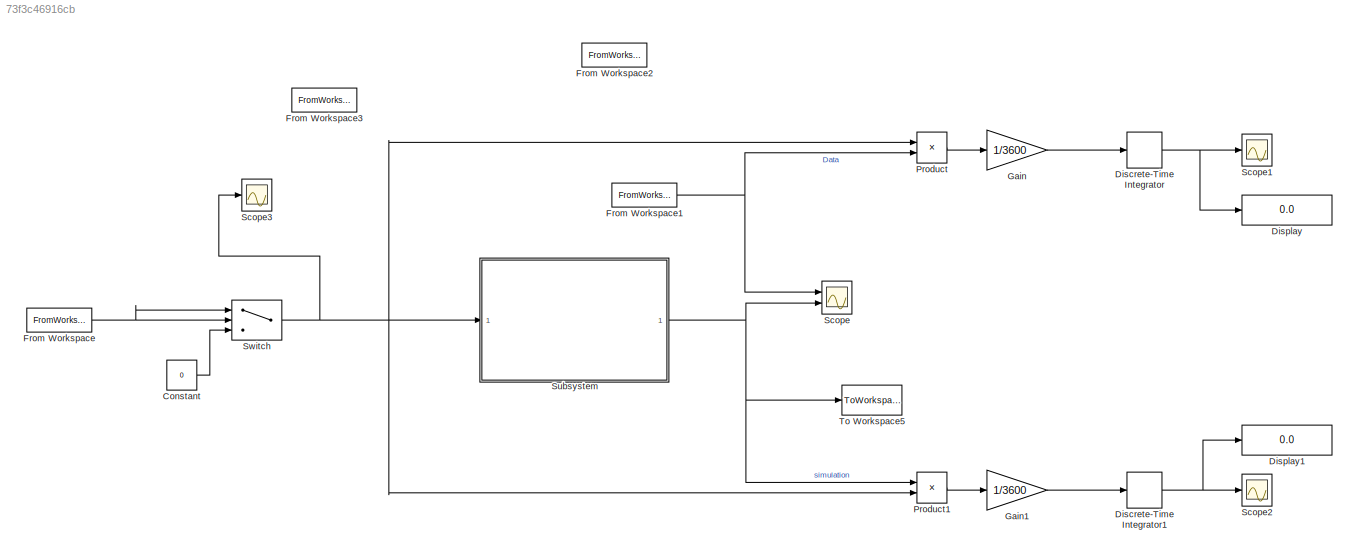
MODEL slx_73f3c46916cb
KIND model
CONFIG AbsTol = auto
CONFIG EnableMultiTasking = off
CONFIG FixedStep = auto
CONFIG MaxStep = auto
CONFIG MinStep = auto
CONFIG RelTol = 1e-3
CONFIG SampleTimeConstraint = Unconstrained
CONFIG Solver = VariableStepAuto
CONFIG SolverName = VariableStepAuto
CONFIG StartTime = 0.0
CONFIG StopTime = 2417.4
BLOCK [Constant] Constant
  Value = 0
BLOCK [DiscreteIntegrator] Discrete-Time Integrator
  ICPrevOutput = DiscIntNeverNeededParam
  ICPrevScaledInput = DiscIntNeverNeededParam
  InitialConditionSetting = Auto
  Ports = [1, 1]
  SampleTime = -1
BLOCK [DiscreteIntegrator] Discrete-Time Integrator1
  ICPrevOutput = DiscIntNeverNeededParam
  ICPrevScaledInput = DiscIntNeverNeededParam
  InitialConditionSetting = Auto
  Ports = [1, 1]
  SampleTime = -1
BLOCK [Display] Display
  Decimation = 1
  Ports = [1]
BLOCK [Display] Display1
  Decimation = 1
  Ports = [1]
BLOCK [FromWorkspace] From Workspace
  SampleTime = 0.001
  VariableName = currentdata
  ZeroCross = on
BLOCK [FromWorkspace] From Workspace1
  SampleTime = 0.001
  VariableName = voltagedata
  ZeroCross = on
BLOCK [FromWorkspace] From Workspace2
  Commented = on
  Interpolate = off
  OutputAfterFinalValue = Cyclic repetition
  SampleTime = 0.001
  VariableName = Vbat
BLOCK [FromWorkspace] From Workspace3
  Commented = on
  Interpolate = off
  OutputAfterFinalValue = Cyclic repetition
  SampleTime = 0.001
  VariableName = Ibat
BLOCK [Gain] Gain
  Gain = 1/3600
  OutDataTypeStr = Inherit: Inherit via internal rule
  ParamDataTypeStr = Inherit: Inherit via internal rule
  SaturateOnIntegerOverflow = off
BLOCK [Gain] Gain1
  Gain = 1/3600
  OutDataTypeStr = Inherit: Inherit via internal rule
  ParamDataTypeStr = Inherit: Inherit via internal rule
  SaturateOnIntegerOverflow = off
BLOCK [Product] Product
  InputSameDT = off
  OutDataTypeStr = Inherit: Inherit via internal rule
  Ports = [2, 1]
  RndMeth = Floor
  SaturateOnIntegerOverflow = off
BLOCK [Product] Product1
  InputSameDT = off
  OutDataTypeStr = Inherit: Inherit via internal rule
  Ports = [2, 1]
  RndMeth = Floor
  SaturateOnIntegerOverflow = off
BLOCK [Scope] Scope
  Floating = off
  NumInputPorts = 2
  Ports = [2]
  ScopeSpecificationString = Simulink.scopes.TimeScopeBlockCfg('CurrentConfiguration', extmgr.ConfigurationSet(extmgr.Configuration('Core','General UI',true),extmgr.Configuration('Core','Source UI',true),extmgr.Configuration('Sources','WiredSimulink',true),extmgr.Configuration('Visuals','Time Domain',true,'SerializedDisplays',{struct('MinYLimReal','3.48942','MaxYLimReal','4.27675','YLabelReal','','MinYLimMag','3.48942','MaxYL...<+1406ch>
BLOCK [Scope] Scope1
  Floating = off
  NumInputPorts = 1
  Ports = [1]
  ScopeSpecificationString = Simulink.scopes.TimeScopeBlockCfg('CurrentConfiguration', extmgr.ConfigurationSet(extmgr.Configuration('Core','General UI',true),extmgr.Configuration('Core','Source UI',true),extmgr.Configuration('Sources','WiredSimulink',true,'DataLoggingVariableName','ScopeData1'),extmgr.Configuration('Visuals','Time Domain',true,'SerializedDisplays',{struct('MinYLimReal','26.58272','MaxYLimReal','26.76913','YLa...<+1462ch>
BLOCK [Scope] Scope2
  Floating = off
  NumInputPorts = 1
  Ports = [1]
  ScopeSpecificationString = Simulink.scopes.TimeScopeBlockCfg('CurrentConfiguration', extmgr.ConfigurationSet(extmgr.Configuration('Core','General UI',true),extmgr.Configuration('Core','Source UI',true),extmgr.Configuration('Sources','WiredSimulink',true,'DataLoggingVariableName','ScopeData1'),extmgr.Configuration('Visuals','Time Domain',true,'SerializedDisplays',{struct('MinYLimReal','-3.34834','MaxYLimReal','30.13504','YLa...<+1461ch>
BLOCK [Scope] Scope3
  Floating = off
  NumInputPorts = 1
  Ports = [1]
  ScopeSpecificationString = Simulink.scopes.TimeScopeBlockCfg('CurrentConfiguration', extmgr.ConfigurationSet(extmgr.Configuration('Core','General UI',true),extmgr.Configuration('Core','Source UI',true),extmgr.Configuration('Sources','WiredSimulink',true,'DataLoggingVariableName','ScopeData1'),extmgr.Configuration('Visuals','Time Domain',true,'SerializedDisplays',{struct('MinYLimReal','-5.76727','MaxYLimReal','51.90545','YLa...<+1423ch>
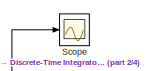
[diagram: Subsystem - part 1/4, top left region]
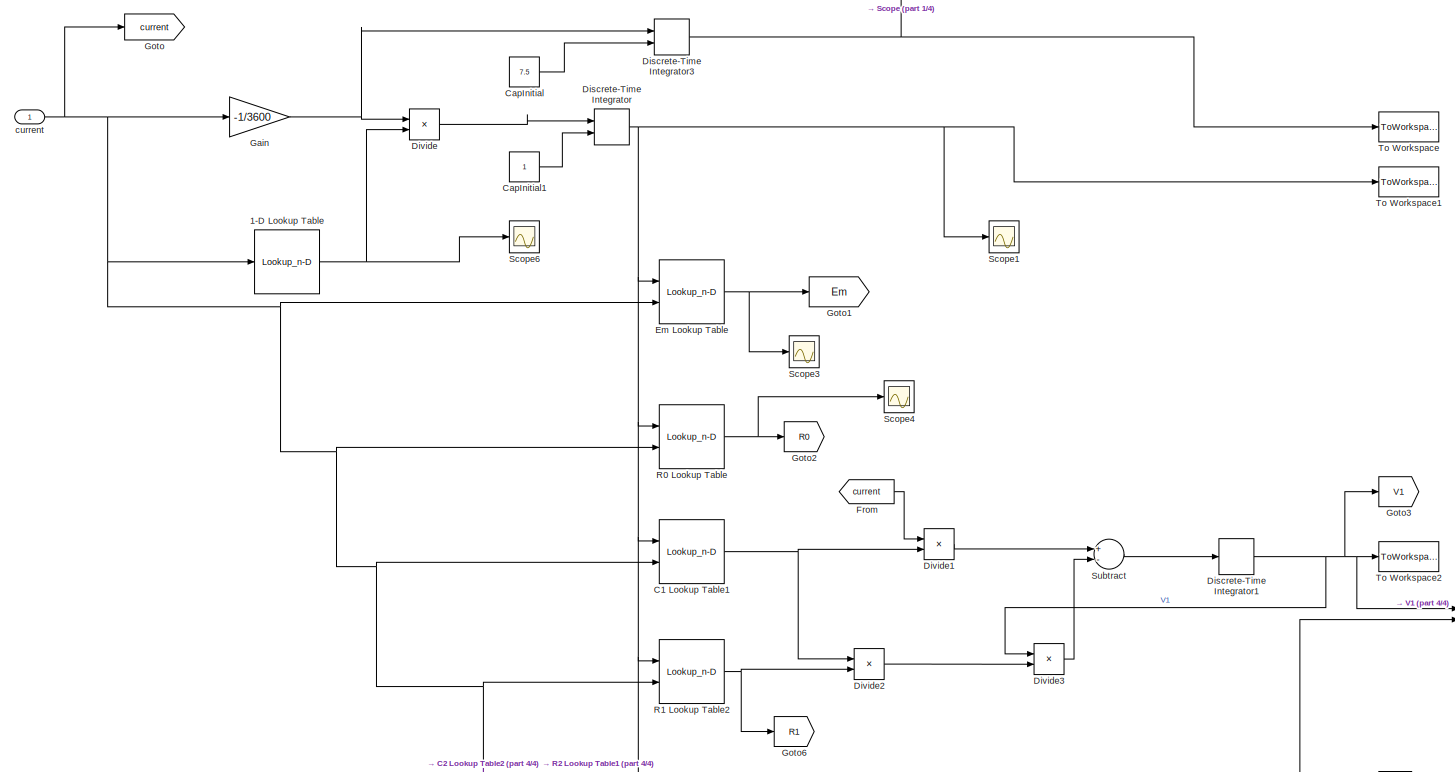
[diagram: Subsystem - part 2/4, middle left region]
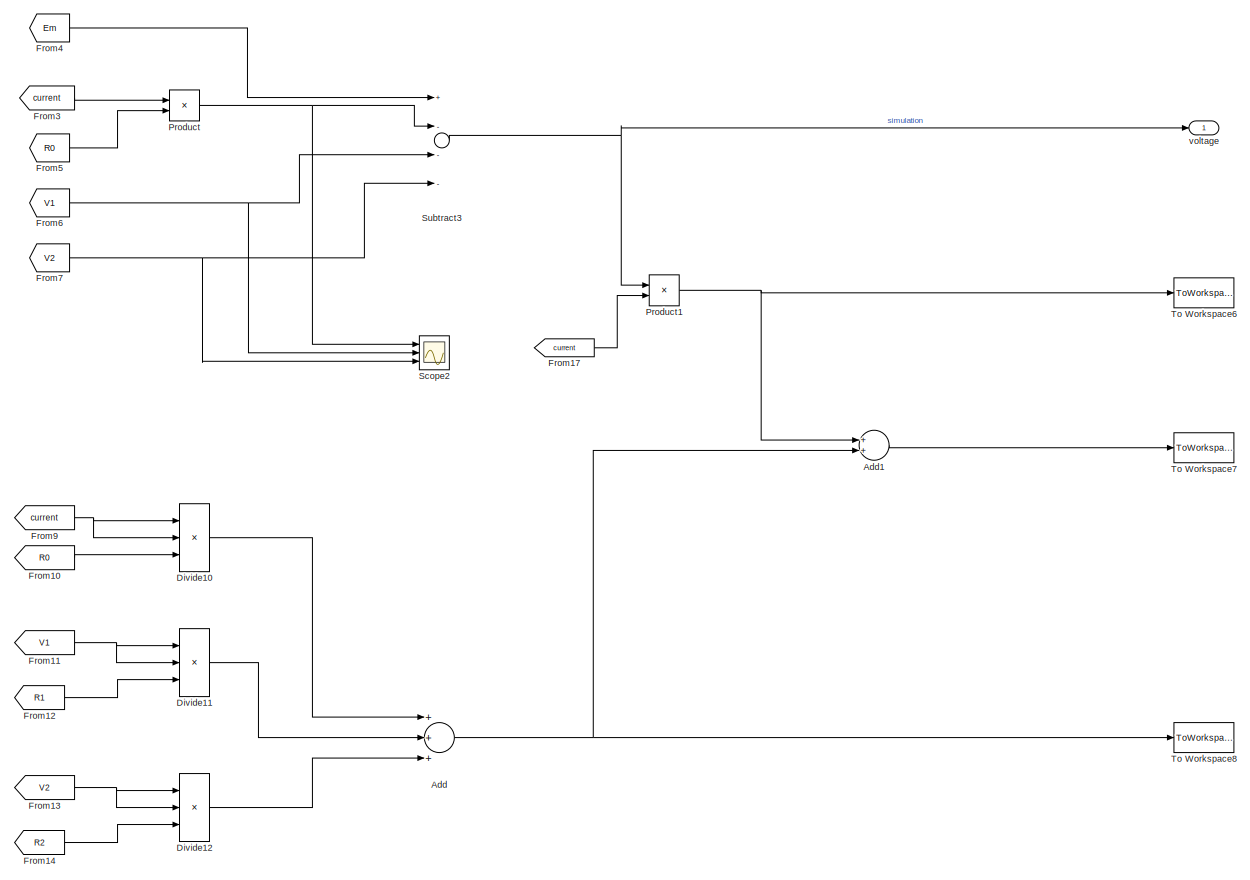
[diagram: Subsystem - part 3/4, middle right region]
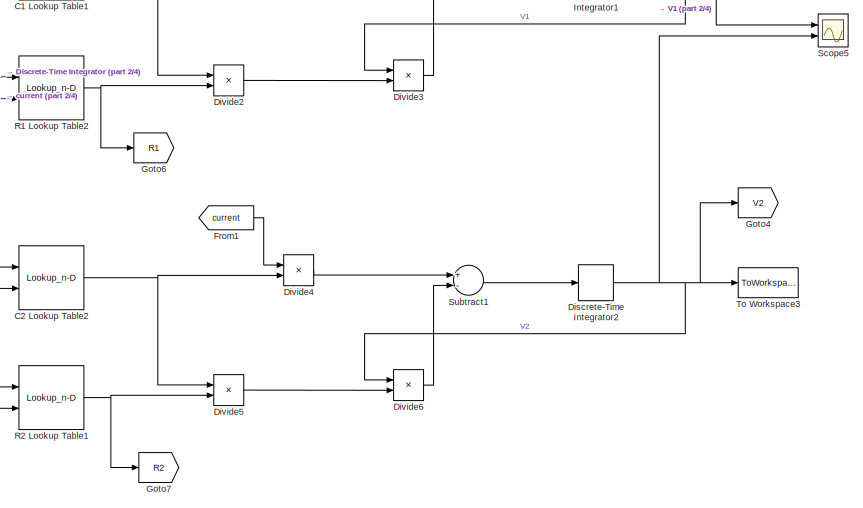
[diagram: Subsystem - part 4/4, bottom center region]
BLOCK [SubSystem] Subsystem
  Ports = [1, 1]
  RequestExecContextInheritance = off
BLOCK [Lookup_n-D] Subsystem/1-D Lookup Table
  BreakpointsForDimension1 = Idis
  InternalRulePriority = Speed
  NumberOfTableDimensions = 1
  Ports = [1, 1]
  RndMeth = Simplest
  Table = Ah
BLOCK [Sum] Subsystem/Add
  InputSameDT = off
  Inputs = +++
  OutDataTypeStr = Inherit: Inherit via internal rule
  Ports = [3, 1]
  SaturateOnIntegerOverflow = off
BLOCK [Sum] Subsystem/Add1
  InputSameDT = off
  OutDataTypeStr = Inherit: Inherit via internal rule
  Ports = [2, 1]
  SaturateOnIntegerOverflow = off
BLOCK [Lookup_n-D] Subsystem/C1 Lookup Table1
  BreakpointsForDimension1 = SOCnew
  BreakpointsForDimension2 = Idis
  InternalRulePriority = Speed
  Ports = [2, 1]
  RndMeth = Simplest
  Table = C1new
BLOCK [Lookup_n-D] Subsystem/C2 Lookup Table2
  BreakpointsForDimension1 = SOCnew
  BreakpointsForDimension2 = Idis
  InternalRulePriority = Speed
  Ports = [2, 1]
  RndMeth = Simplest
  Table = C2new
BLOCK [Constant] Subsystem/CapInitial
  SampleTime = 0.001
  Value = 7.5
BLOCK [Constant] Subsystem/CapInitial1
  SampleTime = 0.001
BLOCK [DiscreteIntegrator] Subsystem/Discrete-Time Integrator
  ICPrevOutput = DiscIntNeverNeededParam
  ICPrevScaledInput = DiscIntNeverNeededParam
  InitialConditionSetting = Auto
  InitialConditionSource = external
  Ports = [2, 1]
  SampleTime = -1
BLOCK [DiscreteIntegrator] Subsystem/Discrete-Time Integrator1
  ICPrevOutput = DiscIntNeverNeededParam
  ICPrevScaledInput = DiscIntNeverNeededParam
  InitialConditionSetting = Auto
  Ports = [1, 1]
  SampleTime = -1
BLOCK [DiscreteIntegrator] Subsystem/Discrete-Time Integrator2
  ICPrevOutput = DiscIntNeverNeededParam
  ICPrevScaledInput = DiscIntNeverNeededParam
  InitialConditionSetting = Auto
  Ports = [1, 1]
  SampleTime = -1
BLOCK [DiscreteIntegrator] Subsystem/Discrete-Time Integrator3
  ICPrevOutput = DiscIntNeverNeededParam
  ICPrevScaledInput = DiscIntNeverNeededParam
  InitialConditionSetting = Auto
  InitialConditionSource = external
  Ports = [2, 1]
  SampleTime = -1
BLOCK [Product] Subsystem/Divide
  InputSameDT = off
  Inputs = */
  OutDataTypeStr = Inherit: Inherit via internal rule
  Ports = [2, 1]
  RndMeth = Floor
  SaturateOnIntegerOverflow = off
BLOCK [Product] Subsystem/Divide1
  InputSameDT = off
  Inputs = */
  OutDataTypeStr = Inherit: Inherit via internal rule
  Ports = [2, 1]
  RndMeth = Floor
  SaturateOnIntegerOverflow = off
BLOCK [Product] Subsystem/Divide10
  InputSameDT = off
  Inputs = ***
  OutDataTypeStr = Inherit: Inherit via internal rule
  Ports = [3, 1]
  RndMeth = Floor
  SaturateOnIntegerOverflow = off
BLOCK [Product] Subsystem/Divide11
  InputSameDT = off
  Inputs = **/
  OutDataTypeStr = Inherit: Inherit via internal rule
  Ports = [3, 1]
  RndMeth = Floor
  SaturateOnIntegerOverflow = off
BLOCK [Product] Subsystem/Divide12
  InputSameDT = off
  Inputs = **/
  OutDataTypeStr = Inherit: Inherit via internal rule
  Ports = [3, 1]
  RndMeth = Floor
  SaturateOnIntegerOverflow = off
BLOCK [Product] Subsystem/Divide2
  InputSameDT = off
  Inputs = **
  OutDataTypeStr = Inherit: Inherit via internal rule
  Ports = [2, 1]
  RndMeth = Floor
  SaturateOnIntegerOverflow = off
BLOCK [Product] Subsystem/Divide3
  InputSameDT = off
  Inputs = */
  OutDataTypeStr = Inherit: Inherit via internal rule
  Ports = [2, 1]
  RndMeth = Floor
  SaturateOnIntegerOverflow = off
BLOCK [Product] Subsystem/Divide4
  InputSameDT = off
  Inputs = */
  OutDataTypeStr = Inherit: Inherit via internal rule
  Ports = [2, 1]
  RndMeth = Floor
  SaturateOnIntegerOverflow = off
BLOCK [Product] Subsystem/Divide5
  InputSameDT = off
  Inputs = **
  OutDataTypeStr = Inherit: Inherit via internal rule
  Ports = [2, 1]
  RndMeth = Floor
  SaturateOnIntegerOverflow = off
BLOCK [Product] Subsystem/Divide6
  InputSameDT = off
  Inputs = */
  OutDataTypeStr = Inherit: Inherit via internal rule
  Ports = [2, 1]
  RndMeth = Floor
  SaturateOnIntegerOverflow = off
BLOCK [Lookup_n-D] Subsystem/Em Lookup Table
  BreakpointsForDimension1 = SOCnew
  BreakpointsForDimension2 = Idis
  InternalRulePriority = Speed
  Ports = [2, 1]
  RndMeth = Simplest
  Table = Emnew
BLOCK [From] Subsystem/From
  GotoTag = current
BLOCK [From] Subsystem/From1
  GotoTag = current
BLOCK [From] Subsystem/From10
  GotoTag = R0
BLOCK [From] Subsystem/From11
  GotoTag = V1
BLOCK [From] Subsystem/From12
  GotoTag = R1
BLOCK [From] Subsystem/From13
  GotoTag = V2
BLOCK [From] Subsystem/From14
  GotoTag = R2
BLOCK [From] Subsystem/From17
  GotoTag = current
BLOCK [From] Subsystem/From3
  GotoTag = current
BLOCK [From] Subsystem/From4
  GotoTag = Em
BLOCK [From] Subsystem/From5
  GotoTag = R0
BLOCK [From] Subsystem/From6
  GotoTag = V1
BLOCK [From] Subsystem/From7
  GotoTag = V2
BLOCK [From] Subsystem/From9
  GotoTag = current
BLOCK [Gain] Subsystem/Gain
  Gain = -1/3600
  OutDataTypeStr = Inherit: Inherit via internal rule
  ParamDataTypeStr = Inherit: Inherit via internal rule
  SaturateOnIntegerOverflow = off
BLOCK [Goto] Subsystem/Goto
  GotoTag = current
BLOCK [Goto] Subsystem/Goto1
  GotoTag = Em
BLOCK [Goto] Subsystem/Goto2
  GotoTag = R0
BLOCK [Goto] Subsystem/Goto3
  GotoTag = V1
BLOCK [Goto] Subsystem/Goto4
  GotoTag = V2
BLOCK [Goto] Subsystem/Goto6
  GotoTag = R1
BLOCK [Goto] Subsystem/Goto7
  GotoTag = R2
BLOCK [Product] Subsystem/Product
  InputSameDT = off
  OutDataTypeStr = Inherit: Inherit via internal rule
  Ports = [2, 1]
  RndMeth = Floor
  SaturateOnIntegerOverflow = off
BLOCK [Product] Subsystem/Product1
  InputSameDT = off
  OutDataTypeStr = Inherit: Inherit via internal rule
  Ports = [2, 1]
  RndMeth = Floor
  SaturateOnIntegerOverflow = off
BLOCK [Lookup_n-D] Subsystem/R0 Lookup Table
  BreakpointsForDimension1 = SOCnew
  BreakpointsForDimension2 = Idis
  InternalRulePriority = Speed
  Ports = [2, 1]
  RndMeth = Simplest
  Table = R0new
BLOCK [Lookup_n-D] Subsystem/R1 Lookup Table2
  BreakpointsForDimension1 = SOCnew
  BreakpointsForDimension2 = Idis
  InternalRulePriority = Speed
  Ports = [2, 1]
  RndMeth = Simplest
  Table = R1new
BLOCK [Lookup_n-D] Subsystem/R2 Lookup Table1
  BreakpointsForDimension1 = SOCnew
  BreakpointsForDimension2 = Idis
  InternalRulePriority = Speed
  Ports = [2, 1]
  RndMeth = Simplest
  Table = R2new
BLOCK [Scope] Subsystem/Scope
  Floating = off
  NumInputPorts = 1
  Ports = [1]
  ScopeSpecificationString = Simulink.scopes.TimeScopeBlockCfg('CurrentConfiguration', extmgr.ConfigurationSet(extmgr.Configuration('Core','General UI',true),extmgr.Configuration('Core','Source UI',true),extmgr.Configuration('Sources','WiredSimulink',true,'DataLoggingVariableName','ScopeData1'),extmgr.Configuration('Visuals','Time Domain',true,'SerializedDisplays',{struct('MinYLimReal','1.36527','MaxYLimReal','8.18164','YLabe...<+1382ch>
BLOCK [Scope] Subsystem/Scope1
  Floating = off
  NumInputPorts = 1
  Ports = [1]
  ScopeSpecificationString = Simulink.scopes.TimeScopeBlockCfg('CurrentConfiguration', extmgr.ConfigurationSet(extmgr.Configuration('Core','General UI',true),extmgr.Configuration('Core','Source UI',true),extmgr.Configuration('Sources','WiredSimulink',true,'DataLoggingVariableName','ScopeData2'),extmgr.Configuration('Visuals','Time Domain',true,'SerializedDisplays',{struct('MinYLimReal','0.71376','MaxYLimReal','0.97555','YLabe...<+1454ch>
BLOCK [Scope] Subsystem/Scope2
  Floating = off
  NumInputPorts = 3
  Ports = [3]
  ScopeSpecificationString = Simulink.scopes.TimeScopeBlockCfg('CurrentConfiguration', extmgr.ConfigurationSet(extmgr.Configuration('Core','General UI',true),extmgr.Configuration('Core','Source UI',true),extmgr.Configuration('Sources','WiredSimulink',true,'DataLoggingVariableName','ScopeData1'),extmgr.Configuration('Visuals','Time Domain',true,'SerializedDisplays',{struct('MinYLimReal','-0.10334','MaxYLimReal','0.10587','YLab...<+1519ch>
BLOCK [Scope] Subsystem/Scope3
  Floating = off
  NumInputPorts = 1
  Ports = [1]
  ScopeSpecificationString = Simulink.scopes.TimeScopeBlockCfg('CurrentConfiguration', extmgr.ConfigurationSet(extmgr.Configuration('Core','General UI',true),extmgr.Configuration('Core','Source UI',true),extmgr.Configuration('Sources','WiredSimulink',true,'DataLoggingVariableName','ScopeData2'),extmgr.Configuration('Visuals','Time Domain',true,'SerializedDisplays',{struct('MinYLimReal','3.69316','MaxYLimReal','4.27058','YLabe...<+1445ch>
BLOCK [Scope] Subsystem/Scope4
  Floating = off
  NumInputPorts = 1
  Ports = [1]
  ScopeSpecificationString = Simulink.scopes.TimeScopeBlockCfg('CurrentConfiguration', extmgr.ConfigurationSet(extmgr.Configuration('Core','General UI',true),extmgr.Configuration('Core','Source UI',true),extmgr.Configuration('Sources','WiredSimulink',true,'DataLoggingVariableName','ScopeData3'),extmgr.Configuration('Visuals','Time Domain',true,'SerializedDisplays',{struct('MinYLimReal','-0.0085','MaxYLimReal','0.01624','YLabe...<+1445ch>
BLOCK [Scope] Subsystem/Scope5
  Floating = off
  NumInputPorts = 2
  Ports = [2]
  ScopeSpecificationString = Simulink.scopes.TimeScopeBlockCfg('CurrentConfiguration', extmgr.ConfigurationSet(extmgr.Configuration('Core','General UI',true),extmgr.Configuration('Core','Source UI',true),extmgr.Configuration('Sources','WiredSimulink',true,'DataLoggingVariableName','ScopeData4'),extmgr.Configuration('Visuals','Time Domain',true,'SerializedDisplays',{struct('MinYLimReal','-93857058662643167605491509750708737765...<+1779ch>
BLOCK [Scope] Subsystem/Scope6
  Floating = off
  NumInputPorts = 1
  Ports = [1]
  ScopeSpecificationString = Simulink.scopes.TimeScopeBlockCfg('CurrentConfiguration', extmgr.ConfigurationSet(extmgr.Configuration('Core','General UI',true),extmgr.Configuration('Core','Source UI',true),extmgr.Configuration('Sources','WiredSimulink',true,'DataLoggingVariableName','ScopeData5'),extmgr.Configuration('Visuals','Time Domain',true,'SerializedDisplays',{struct('MinYLimReal','7.18587','MaxYLimReal','8.20157','YLabe...<+1446ch>
BLOCK [Sum] Subsystem/Subtract
  InputSameDT = off
  Inputs = +-
  OutDataTypeStr = Inherit: Inherit via internal rule
  Ports = [2, 1]
  SaturateOnIntegerOverflow = off
BLOCK [Sum] Subsystem/Subtract1
  InputSameDT = off
  Inputs = +-
  OutDataTypeStr = Inherit: Inherit via internal rule
  Ports = [2, 1]
  SaturateOnIntegerOverflow = off
BLOCK [Sum] Subsystem/Subtract3
  InputSameDT = off
  Inputs = +---
  OutDataTypeStr = Inherit: Inherit via internal rule
  Ports = [4, 1]
  SaturateOnIntegerOverflow = off
BLOCK [ToWorkspace] Subsystem/To Workspace
  FixptAsFi = on
  MaxDataPoints = inf
  Ports = [1]
  SampleTime = -1
  VariableName = Ah
BLOCK [ToWorkspace] Subsystem/To Workspace1
  FixptAsFi = on
  MaxDataPoints = inf
  Ports = [1]
  SampleTime = -1
  VariableName = SOC
BLOCK [ToWorkspace] Subsystem/To Workspace2
  FixptAsFi = on
  MaxDataPoints = inf
  Ports = [1]
  SampleTime = -1
  VariableName = V1
BLOCK [ToWorkspace] Subsystem/To Workspace3
  FixptAsFi = on
  MaxDataPoints = inf
  Ports = [1]
  SampleTime = -1
  VariableName = V2
BLOCK [ToWorkspace] Subsystem/To Workspace6
  FixptAsFi = on
  MaxDataPoints = inf
  Ports = [1]
  SampleTime = -1
  VariableName = PwrLoad
BLOCK [ToWorkspace] Subsystem/To Workspace7
  FixptAsFi = on
  MaxDataPoints = inf
  Ports = [1]
  SampleTime = -1
  VariableName = PwrStored
BLOCK [ToWorkspace] Subsystem/To Workspace8
  FixptAsFi = on
  MaxDataPoints = inf
  Ports = [1]
  SampleTime = -1
  VariableName = Pwrloss
BLOCK [Inport] Subsystem/current
  IconDisplay = Port number
BLOCK [Outport] Subsystem/voltage
  IconDisplay = Port number
BLOCK [Switch] Switch
  Criteria = u2 > Threshold
  InputSameDT = off
  SaturateOnIntegerOverflow = off
  Threshold = 0.5
BLOCK [ToWorkspace] To Workspace5
  FixptAsFi = on
  MaxDataPoints = inf
  Ports = [1]
  SampleTime = -1
  VariableName = BattVolt
LINE Constant:1 -> Switch:3
NET Discrete-Time Integrator1:1 -> Display1:1, Scope2:1
NET Discrete-Time Integrator:1 -> Display:1, Scope1:1
NET From Workspace1:1 -> Product:2, Scope:1
NET From Workspace:1 -> Switch:1, Switch:2
LINE Gain1:1 -> Discrete-Time Integrator1:1
LINE Gain:1 -> Discrete-Time Integrator:1
LINE Product1:1 -> Gain1:1
LINE Product:1 -> Gain:1
NET Subsystem/1-D Lookup Table:1 -> Subsystem/Divide:2, Subsystem/Scope6:1
LINE Subsystem/Add1:1 -> Subsystem/To Workspace7:1
NET Subsystem/Add:1 -> Subsystem/Add1:2, Subsystem/To Workspace8:1
NET Subsystem/C1 Lookup Table1:1 -> Subsystem/Divide1:2, Subsystem/Divide2:1
NET Subsystem/C2 Lookup Table2:1 -> Subsystem/Divide4:2, Subsystem/Divide5:1
LINE Subsystem/CapInitial1:1 -> Subsystem/Discrete-Time Integrator:2
LINE Subsystem/CapInitial:1 -> Subsystem/Discrete-Time Integrator3:2
NET Subsystem/Discrete-Time Integrator1:1 -> Subsystem/Divide3:1, Subsystem/Goto3:1, Subsystem/Scope5:1, Subsystem/To Workspace2:1
NET Subsystem/Discrete-Time Integrator2:1 -> Subsystem/Divide6:1, Subsystem/Goto4:1, Subsystem/Scope5:2, Subsystem/To Workspace3:1
NET Subsystem/Discrete-Time Integrator3:1 -> Subsystem/Scope:1, Subsystem/To Workspace:1
NET Subsystem/Discrete-Time Integrator:1 -> Subsystem/C1 Lookup Table1:1, Subsystem/C2 Lookup Table2:1, Subsystem/Em Lookup Table:1, Subsystem/R0 Lookup Table:1, Subsystem/R1 Lookup Table2:1, Subsystem/R2 Lookup Table1:1, Subsystem/Scope1:1, Subsystem/To Workspace1:1
LINE Subsystem/Divide10:1 -> Subsystem/Add:1
LINE Subsystem/Divide11:1 -> Subsystem/Add:2
LINE Subsystem/Divide12:1 -> Subsystem/Add:3
LINE Subsystem/Divide1:1 -> Subsystem/Subtract:1
LINE Subsystem/Divide2:1 -> Subsystem/Divide3:2
LINE Subsystem/Divide3:1 -> Subsystem/Subtract:2
LINE Subsystem/Divide4:1 -> Subsystem/Subtract1:1
LINE Subsystem/Divide5:1 -> Subsystem/Divide6:2
LINE Subsystem/Divide6:1 -> Subsystem/Subtract1:2
LINE Subsystem/Divide:1 -> Subsystem/Discrete-Time Integrator:1
NET Subsystem/Em Lookup Table:1 -> Subsystem/Goto1:1, Subsystem/Scope3:1
LINE Subsystem/From10:1 -> Subsystem/Divide10:3
NET Subsystem/From11:1 -> Subsystem/Divide11:1, Subsystem/Divide11:2
LINE Subsystem/From12:1 -> Subsystem/Divide11:3
NET Subsystem/From13:1 -> Subsystem/Divide12:1, Subsystem/Divide12:2
LINE Subsystem/From14:1 -> Subsystem/Divide12:3
LINE Subsystem/From17:1 -> Subsystem/Product1:2
LINE Subsystem/From1:1 -> Subsystem/Divide4:1
LINE Subsystem/From3:1 -> Subsystem/Product:1
LINE Subsystem/From4:1 -> Subsystem/Subtract3:1
LINE Subsystem/From5:1 -> Subsystem/Product:2
NET Subsystem/From6:1 -> Subsystem/Scope2:2, Subsystem/Subtract3:3
NET Subsystem/From7:1 -> Subsystem/Scope2:3, Subsystem/Subtract3:4
NET Subsystem/From9:1 -> Subsystem/Divide10:1, Subsystem/Divide10:2
LINE Subsystem/From:1 -> Subsystem/Divide1:1
NET Subsystem/Gain:1 -> Subsystem/Discrete-Time Integrator3:1, Subsystem/Divide:1
NET Subsystem/Product1:1 -> Subsystem/Add1:1, Subsystem/To Workspace6:1
NET Subsystem/Product:1 -> Subsystem/Scope2:1, Subsystem/Subtract3:2
NET Subsystem/R0 Lookup Table:1 -> Subsystem/Goto2:1, Subsystem/Scope4:1
NET Subsystem/R1 Lookup Table2:1 -> Subsystem/Divide2:2, Subsystem/Goto6:1
NET Subsystem/R2 Lookup Table1:1 -> Subsystem/Divide5:2, Subsystem/Goto7:1
LINE Subsystem/Subtract1:1 -> Subsystem/Discrete-Time Integrator2:1
NET Subsystem/Subtract3:1 -> Subsystem/Product1:1, Subsystem/voltage:1
LINE Subsystem/Subtract:1 -> Subsystem/Discrete-Time Integrator1:1
NET Subsystem/current:1 -> Subsystem/1-D Lookup Table:1, Subsystem/C1 Lookup Table1:2, Subsystem/C2 Lookup Table2:2, Subsystem/Em Lookup Table:2, Subsystem/Gain:1, Subsystem/Goto:1, Subsystem/R0 Lookup Table:2, Subsystem/R1 Lookup Table2:2, Subsystem/R2 Lookup Table1:2
NET Subsystem:1 -> Product1:1, Scope:2, To Workspace5:1
NET Switch:1 -> Product1:2, Product:1, Scope3:1, Subsystem:1
note: NET lines group one-source signal fan-out (src -> all destinations, sorted); 1:1 wires keep LINE
